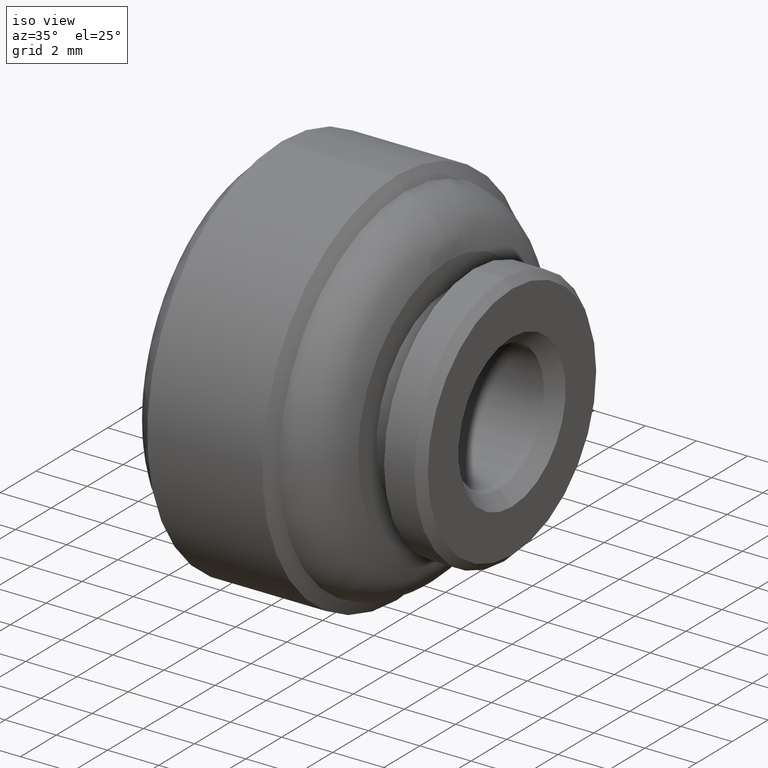
[diagram: clean part render]
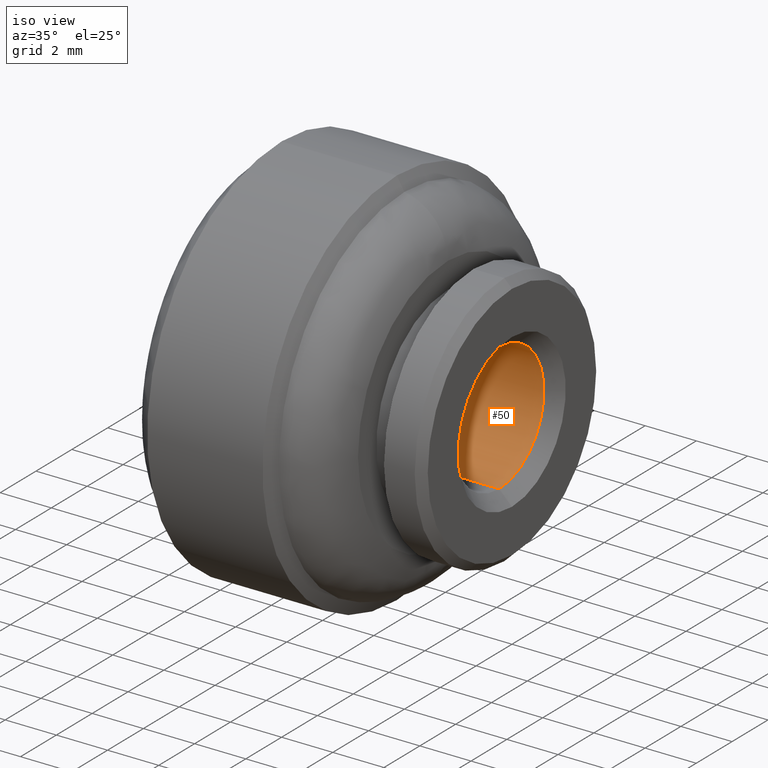
[diagram: same view with one face highlighted and labeled with its STEP entity id]
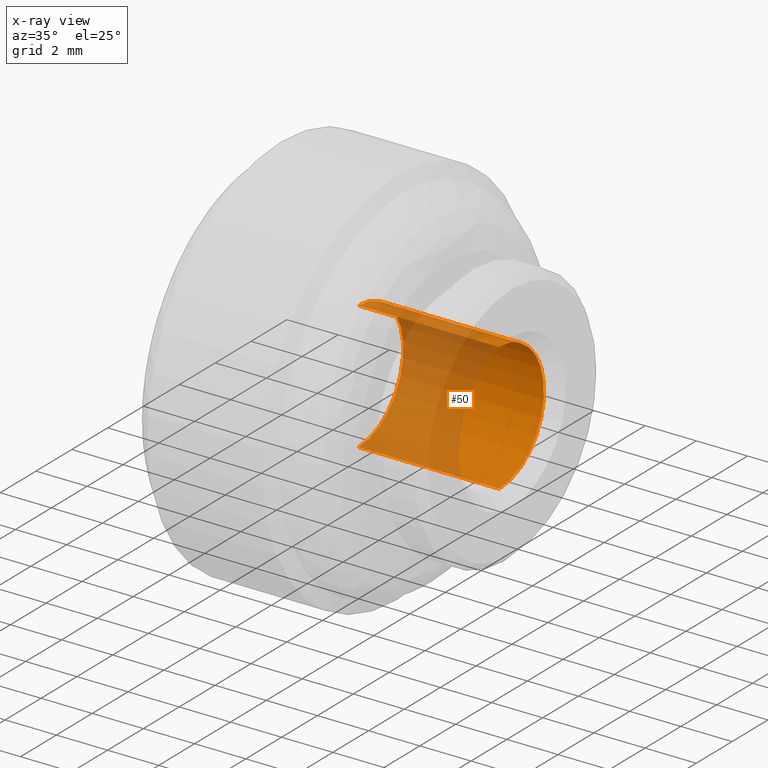
[diagram: x-ray of the same camera — body ghosted, the highlighted face saturated]
A machine part, iso view. The second image highlights one B-rep face of the part: STEP entity #50.
The next image is the same camera in x-ray: the body ghosted, the highlighted face saturated — about 57% of this face is hidden behind the body in this view.
In plain terms, the highlighted cylindrical surface (partial cylindrical patch) has radius 2.5 mm, axis along (1, -0, -0).
Its self-contained STEP definition (entity closure, byte-faithful):
#50=ADVANCED_FACE('',(#174),#173,.F.);
#173=CYLINDRICAL_SURFACE('',#453,2.50000000000E+00);
#174=FACE_OUTER_BOUND('',#454,.T.);
#450=CARTESIAN_POINT('',(0.00000000000E+00,0.00000000000E+00,0.00000000000E+00));
#451=DIRECTION('',(1.00000000000E+00,-0.00000000000E+00,-0.00000000000E+00));
#452=DIRECTION('',(-0.00000000000E+00,-0.00000000000E+00,-1.00000000000E+00));
#453=AXIS2_PLACEMENT_3D('',#450,#451,#452);
#454=EDGE_LOOP('',(#718,#719,#720,#721));
#718=ORIENTED_EDGE('',*,*,#823,.T.);
#719=ORIENTED_EDGE('',*,*,#824,.T.);
#720=ORIENTED_EDGE('',*,*,#825,.F.);
#721=ORIENTED_EDGE('',*,*,#826,.F.);
#823=EDGE_CURVE('',#1007,#1014,#1027,.T.);
#824=EDGE_CURVE('',#1014,#1033,#1034,.T.);
#825=EDGE_CURVE('',#1040,#1033,#1041,.T.);
#826=EDGE_CURVE('',#1007,#1040,#1047,.T.);
#1007=VERTEX_POINT('',#1336);
#1014=VERTEX_POINT('',#1339);
#1027=CIRCLE('',#1349,2.50000000000E+00);
#1033=VERTEX_POINT('',#1350);
#1034=(BOUNDED_CURVE() B_SPLINE_CURVE(1,(#1351,#1352),.UNSPECIFIED.,.F.,.F.) B_SPLINE_CURVE_WITH_KNOTS((2,2),(8.33333283663E-02,9.16666668285E-01),.UNSPECIFIED.) CURVE() GEOMETRIC_REPRESENTATION_ITEM() RATIONAL_B_SPLINE_CURVE((1.00000000000E+00,1.00000000000E+00)) REPRESENTATION_ITEM('') );
#1040=VERTEX_POINT('',#1353);
#1041=CIRCLE('',#1357,2.50000000000E+00);
#1047=(BOUNDED_CURVE() B_SPLINE_CURVE(1,(#1358,#1359),.UNSPECIFIED.,.F.,.F.) B_SPLINE_CURVE_WITH_KNOTS((2,2),(8.33333333333E-02,9.16666666667E-01),.UNSPECIFIED.) CURVE() GEOMETRIC_REPRESENTATION_ITEM() RATIONAL_B_SPLINE_CURVE((7.50000000000E-01,7.50000000000E-01)) REPRESENTATION_ITEM('') );
#1336=CARTESIAN_POINT('',(-6.00000000000E+00,0.00000000000E+00,2.50000000000E+00));
#1339=CARTESIAN_POINT('',(-6.00000000000E+00,1.48029736617E-16,-2.50000000000E+00));
#1346=CARTESIAN_POINT('',(-6.00000000000E+00,0.00000000000E+00,0.00000000000E+00));
#1347=DIRECTION('',(-1.00000000000E+00,0.00000000000E+00,0.00000000000E+00));
#1348=DIRECTION('',(0.00000000000E+00,-1.22460635382E-16,1.00000000000E+00));
#1349=AXIS2_PLACEMENT_3D('',#1346,#1347,#1348);
#1350=CARTESIAN_POINT('',(-5.00000000000E-01,1.48029736617E-16,-2.50000000000E+00));
#1351=CARTESIAN_POINT('',(-6.00000003278E+00,0.00000000000E+00,-2.50000000000E+00));
#1352=CARTESIAN_POINT('',(-4.99999989320E-01,0.00000000000E+00,-2.50000000000E+00));
#1353=CARTESIAN_POINT('',(-5.00000000000E-01,0.00000000000E+00,2.50000000000E+00));
#1354=CARTESIAN_POINT('',(-5.00000000000E-01,0.00000000000E+00,0.00000000000E+00));
#1355=DIRECTION('',(-1.00000000000E+00,0.00000000000E+00,0.00000000000E+00));
#1356=DIRECTION('',(0.00000000000E+00,-1.22460635382E-16,1.00000000000E+00));
#1357=AXIS2_PLACEMENT_3D('',#1354,#1355,#1356);
#1358=CARTESIAN_POINT('',(-6.00000000000E+00,-1.48029736617E-16,2.50000000000E+00));
#1359=CARTESIAN_POINT('',(-5.00000000000E-01,-1.48029736617E-16,2.50000000000E+00));